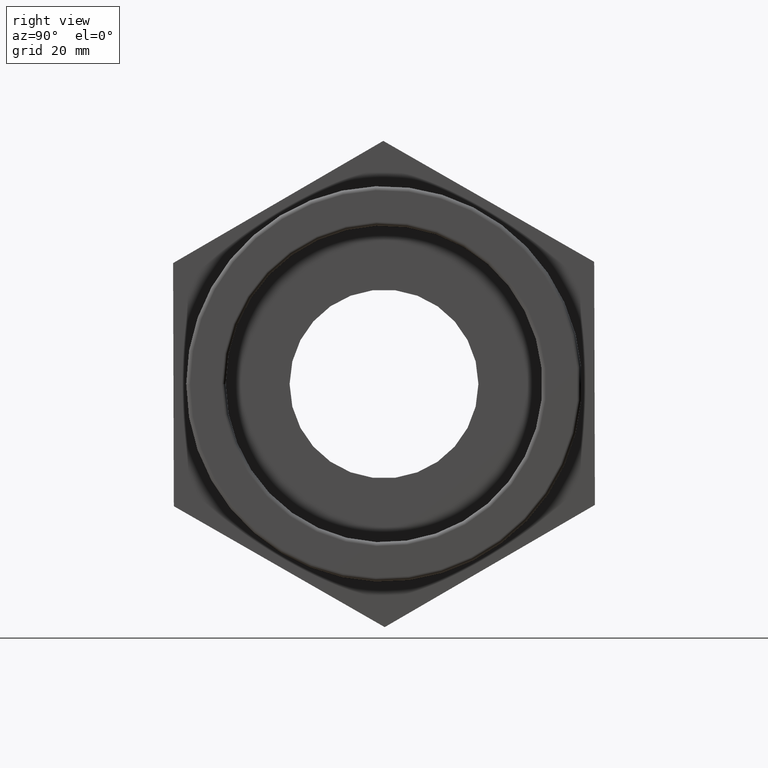
[diagram: clean part render]
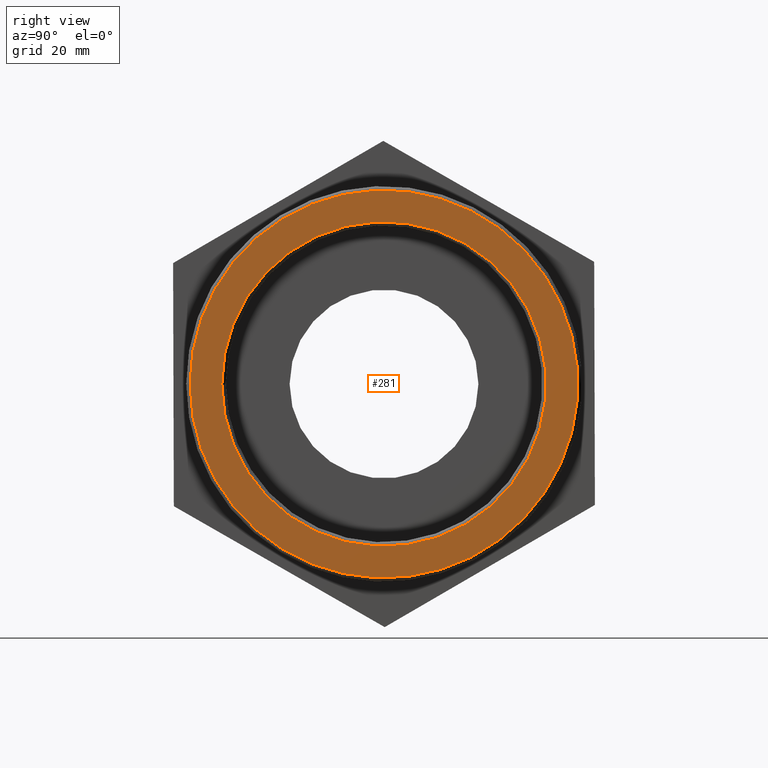
[diagram: same view with one face highlighted and labeled with its STEP entity id]
A machine part, right view. The second image highlights one B-rep face of the part: STEP entity #281.
In plain terms, the highlighted planar face has unit normal (1, 0, 0).
Its self-contained STEP definition (entity closure, byte-faithful):
#56=PLANE('',#306);
#69=FACE_BOUND('',#107,.T.);
#84=FACE_OUTER_BOUND('',#106,.T.);
#106=EDGE_LOOP('',(#214));
#107=EDGE_LOOP('',(#215));
#141=CIRCLE('',#305,30.82544);
#142=CIRCLE('',#307,36.84016);
#155=VERTEX_POINT('',#432);
#156=VERTEX_POINT('',#435);
#181=EDGE_CURVE('',#155,#155,#141,.T.);
#182=EDGE_CURVE('',#156,#156,#142,.T.);
#214=ORIENTED_EDGE('',*,*,#182,.F.);
#215=ORIENTED_EDGE('',*,*,#181,.F.);
#281=ADVANCED_FACE('',(#84,#69),#56,.T.);
#305=AXIS2_PLACEMENT_3D('',#433,#344,#345);
#306=AXIS2_PLACEMENT_3D('',#434,#346,#347);
#307=AXIS2_PLACEMENT_3D('',#436,#348,#349);
#344=DIRECTION('center_axis',(1.,1.83697019872103E-16,0.));
#345=DIRECTION('ref_axis',(-1.83697019872103E-16,1.,6.12323399573676E-17));
#346=DIRECTION('center_axis',(1.,1.83697019872103E-16,0.));
#347=DIRECTION('ref_axis',(0.,0.,-1.));
#348=DIRECTION('center_axis',(-1.,-1.83697019872103E-16,0.));
#349=DIRECTION('ref_axis',(-1.83697019872103E-16,1.,6.12323399573677E-17));
#432=CARTESIAN_POINT('',(33.,-30.82544,-5.66254146424632E-15));
#433=CARTESIAN_POINT('Origin',(33.,1.21240033115588E-14,0.));
#434=CARTESIAN_POINT('Origin',(33.,-37.592,0.));
#435=CARTESIAN_POINT('',(33.,-36.84016,2.25580920120382E-15));
#436=CARTESIAN_POINT('Origin',(33.,1.21240033115588E-14,0.));